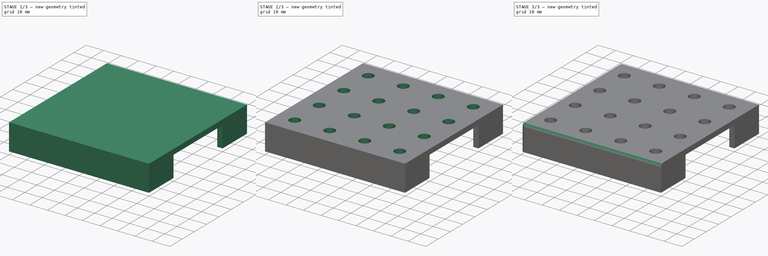
[diagram: build sequence overview — one tinted view per stage of 3, left to right]
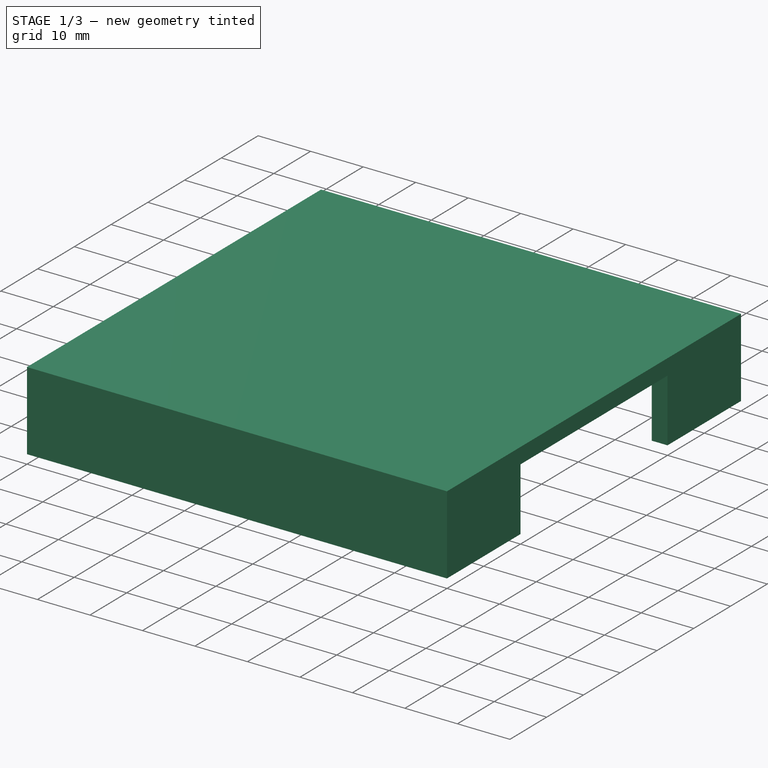
[diagram: stage 1 of 3 — iso view after this stage's code; geometry added in this stage tinted green]
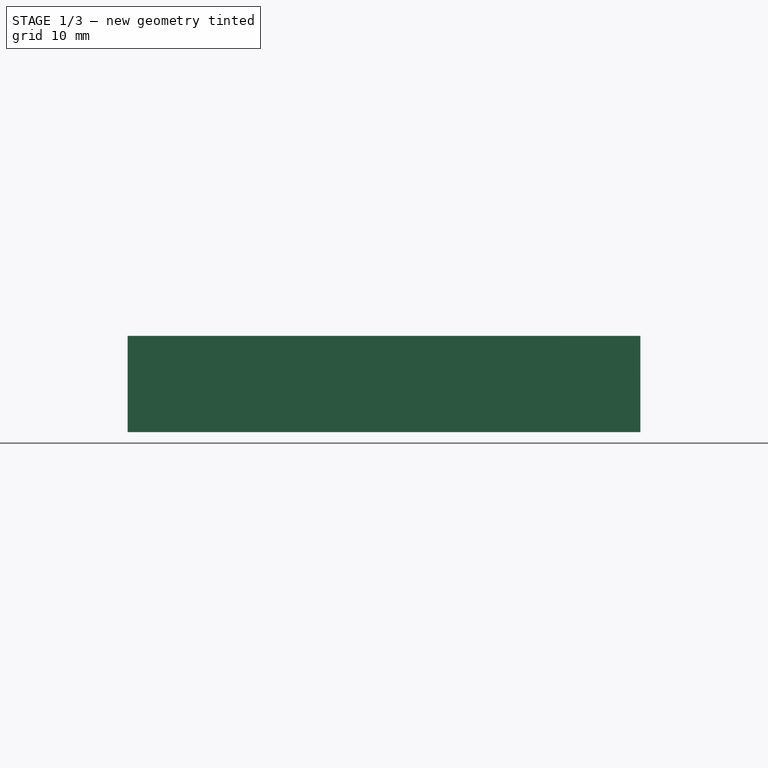
[diagram: stage 1 of 3 — front view after this stage's code; geometry added in this stage tinted green]
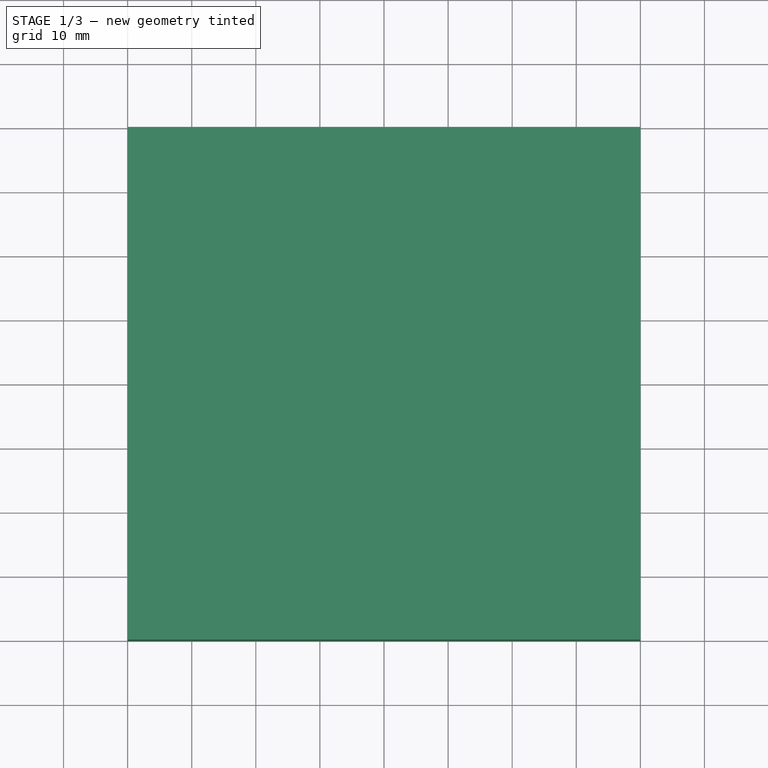
[diagram: stage 1 of 3 — top view after this stage's code; geometry added in this stage tinted green]
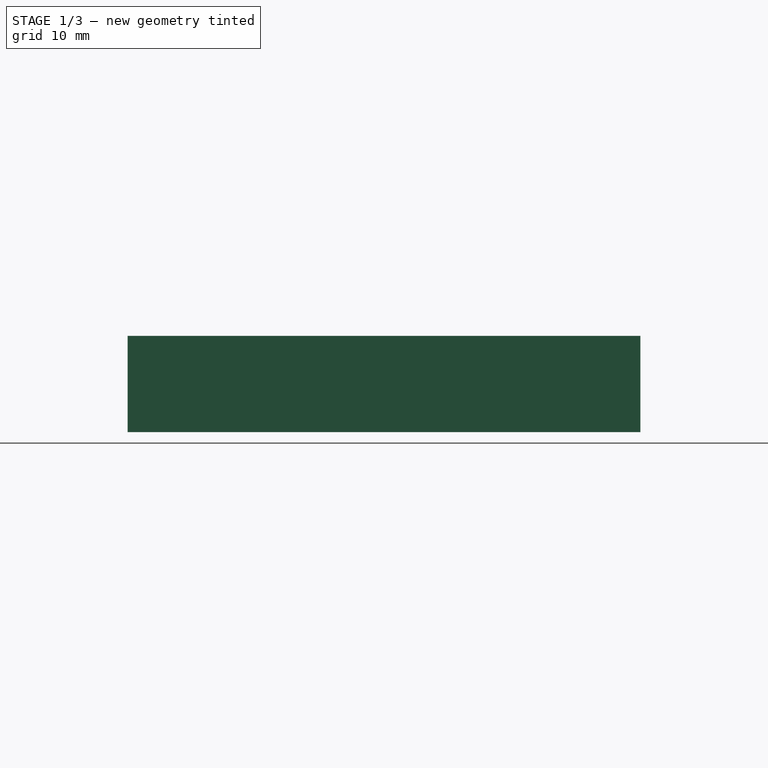
[diagram: stage 1 of 3 — right view after this stage's code; geometry added in this stage tinted green]
FCSTD DOCUMENT  (FreeCAD 0.16R6431 (Git))
Label: Base
License: All rights reserved
LicenseURL: http://en.wikipedia.org/wiki/All_rights_reserved
objects: Sketcher::SketchObject×5, PartDesign::Pocket×3, PartDesign::Pad×2, PartDesign::Fillet×2
note: 17 computed .brp shape members not serialized (recipe doc carries the construction recipe); baked Part::Feature solids carry a one-line shape summary decoded from their .brp

FEATURE [Sketcher::SketchObject] Sketch
  sketch-geometry (4):
    g0: LineSegment StartX=0 StartY=80 StartZ=0 EndX=80 EndY=80 EndZ=0
    g1: LineSegment StartX=80 StartY=80 StartZ=0 EndX=80 EndY=0 EndZ=0
    g2: LineSegment StartX=80 StartY=0 StartZ=0 EndX=0 EndY=0 EndZ=0
    g3: LineSegment StartX=0 StartY=0 StartZ=0 EndX=0 EndY=80 EndZ=0
  constraints (12):
    c: Coincident(g0,g1)
    c: Coincident(g1,g2)
    c: Coincident(g2,g3)
    c: Coincident(g3,g0)
    c: Horizontal(g0)
    c: Horizontal(g2)
    c: Vertical(g1)
    c: Vertical(g3)
    c: PointOnObject(g2,g-1)
    c: PointOnObject(g2,g-2)
    c: DistanceX(g-1,g1) = 80
    c: DistanceY(g-1,g0) = 80
FEATURE [PartDesign::Pad] Pad
  Length = 15
  Length2 = 100
  Sketch = -> Sketch
  Type = 0
FEATURE [Sketcher::SketchObject] Sketch003
  Placement = pos=(0,0,0) rot=(1,0,0;3.14159rad)
  Support = -> Pad [Face5]
  sketch-geometry (12):
    g0: LineSegment StartX=3 StartY=-3 StartZ=0 EndX=77 EndY=-3 EndZ=0
    g1: LineSegment StartX=3 StartY=-77 StartZ=0 EndX=3 EndY=-3 EndZ=0
    g2: LineSegment StartX=77 StartY=-3 StartZ=0 EndX=77 EndY=-20 EndZ=0
    g3: LineSegment StartX=77 StartY=-20 StartZ=0 EndX=80 EndY=-20 EndZ=0
    g4: LineSegment StartX=80 StartY=-20 StartZ=0 EndX=80 EndY=-60 EndZ=0
    g5: LineSegment StartX=80 StartY=-60 StartZ=0 EndX=77 EndY=-60 EndZ=0
    g6: LineSegment StartX=77 StartY=-60 StartZ=0 EndX=77 EndY=-77 EndZ=0
    g7: LineSegment StartX=3 StartY=-77 StartZ=0 EndX=20 EndY=-77 EndZ=0
    g8: LineSegment StartX=20 StartY=-77 StartZ=0 EndX=20 EndY=-80 EndZ=0
    g9: LineSegment StartX=20 StartY=-80 StartZ=0 EndX=60 EndY=-80 EndZ=0
    g10: LineSegment StartX=60 StartY=-80 StartZ=0 EndX=60 EndY=-77 EndZ=0
    g11: LineSegment StartX=60 StartY=-77 StartZ=0 EndX=77 EndY=-77 EndZ=0
  constraints (36):
    c: Coincident(g1,g0)
    c: Horizontal(g0)
    c: Vertical(g1)
    c: Coincident(g0,g2)
    c: Vertical(g2)
    c: Coincident(g2,g3)
    c: Horizontal(g3)
    c: Coincident(g3,g4)
    c: Vertical(g4)
    c: Horizontal(g5)
    c: Coincident(g5,g6)
    c: Vertical(g6)
    c: Coincident(g1,g7)
    c: Coincident(g7,g8)
    c: Vertical(g8)
    c: Coincident(g8,g9)
    c: Horizontal(g9)
    c: Horizontal(g7)
    c: Vertical(g10)
    c: Coincident(g10,g11)
    c: Coincident(g11,g6)
    c: Horizontal(g11)
    c: DistanceX(g-1,g0) = 3
    c: DistanceY(g-1,g0) = -3
    c: DistanceX(g-1,g8) = 20
    c: Coincident(g9,g10)
    c: DistanceY(g-1,g1) = -77
    c: DistanceY(g-1,g8) = -80
    c: DistanceX(g-1,g9) = 60
    c: DistanceX(g-1,g6) = 77
    c: DistanceX(g-1,g5) = 80
    c: Coincident(g4,g5)
    c: DistanceY(g-1,g3) = -20
    c: DistanceY(g-1,g4) = -60
    c: DistanceY(g-1,g6) = -77
    c: DistanceX(g-1,g0) = 77
FEATURE [PartDesign::Pocket] Pocket
  Length = 12
  Sketch = -> Sketch003
  Type = 0
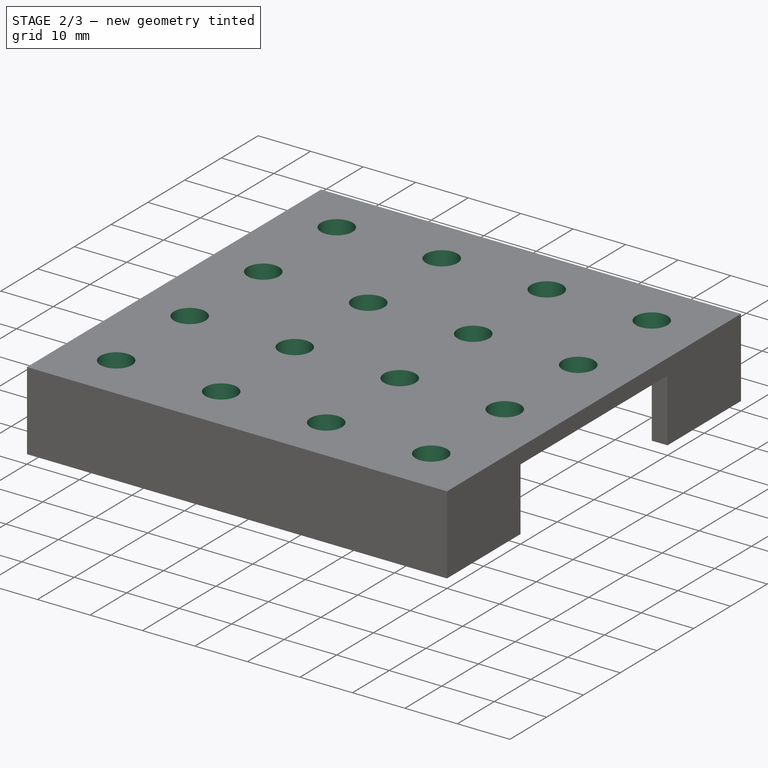
[diagram: stage 2 of 3 — iso view after this stage's code; geometry added in this stage tinted green]
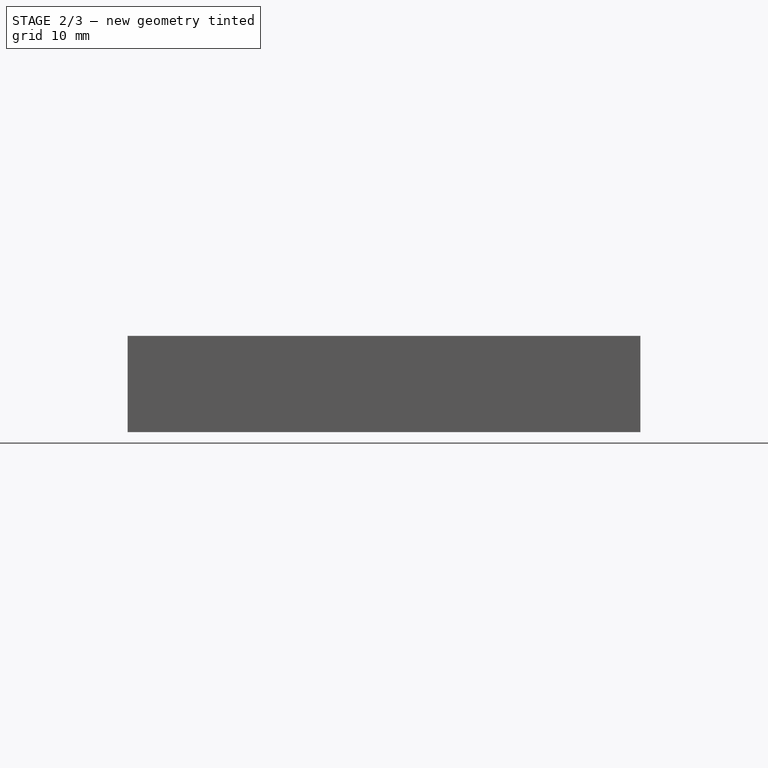
[diagram: stage 2 of 3 — front view after this stage's code; geometry added in this stage tinted green]
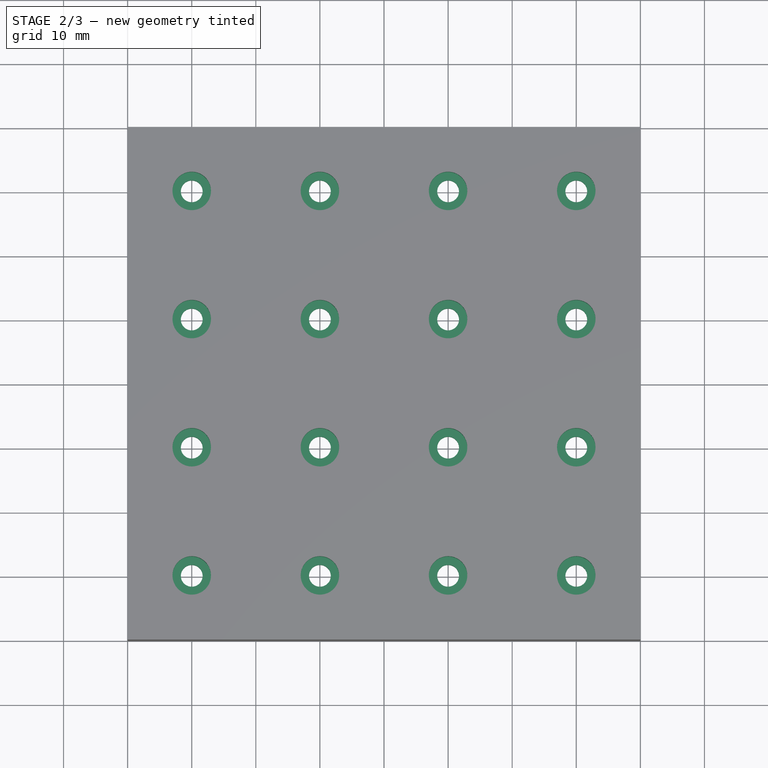
[diagram: stage 2 of 3 — top view after this stage's code; geometry added in this stage tinted green]
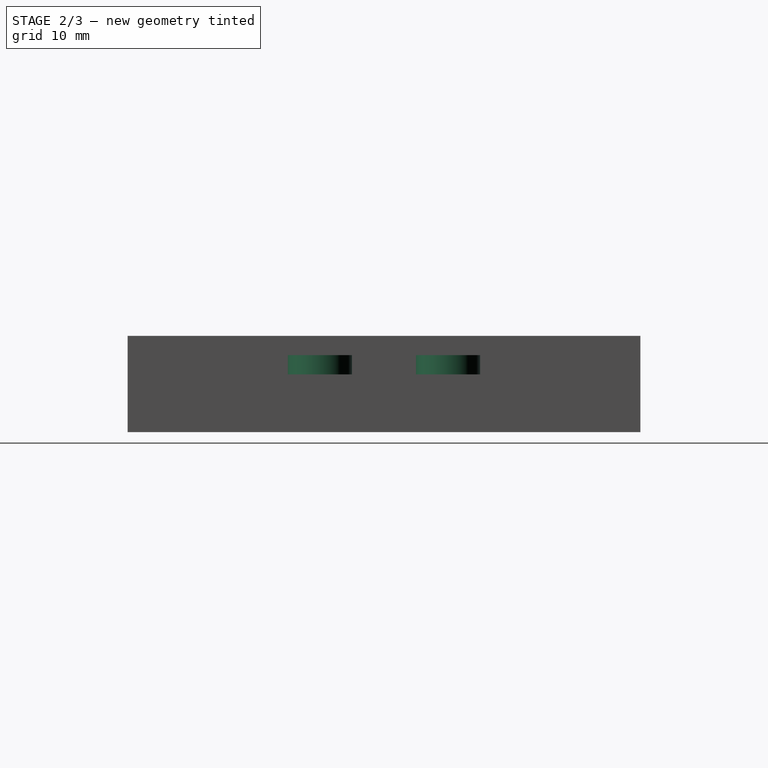
[diagram: stage 2 of 3 — right view after this stage's code; geometry added in this stage tinted green]
FEATURE [Sketcher::SketchObject] Sketch006
  Placement = pos=(0,0,12) rot=(1,0,0;3.14159rad)
  Support = -> Pocket [Face4]
  sketch-geometry (31):
    g0: Circle CenterX=10 CenterY=-10 CenterZ=0 NormalX=0 NormalY=0 NormalZ=1 Radius=5
    g1: Circle CenterX=30 CenterY=-10 CenterZ=0 NormalX=0 NormalY=0 NormalZ=1 Radius=5
    g2: LineSegment [constr] StartX=10 StartY=-10 StartZ=0 EndX=30 EndY=-10 EndZ=0
    g3: Circle CenterX=50 CenterY=-10 CenterZ=0 NormalX=0 NormalY=0 NormalZ=1 Radius=5
    g4: LineSegment [constr] StartX=30 StartY=-10 StartZ=0 EndX=50 EndY=-10 EndZ=0
    g5: Circle CenterX=70 CenterY=-10 CenterZ=0 NormalX=0 NormalY=0 NormalZ=1 Radius=5
    g6: LineSegment [constr] StartX=50 StartY=-10 StartZ=0 EndX=70 EndY=-10 EndZ=0
    g7: Circle CenterX=10 CenterY=-30 CenterZ=0 NormalX=0 NormalY=0 NormalZ=1 Radius=5
    g8: LineSegment [constr] StartX=10 StartY=-10 StartZ=0 EndX=10 EndY=-30 EndZ=0
    g9: Circle CenterX=30 CenterY=-30 CenterZ=0 NormalX=0 NormalY=0 NormalZ=1 Radius=5
    g10: LineSegment [constr] StartX=10 StartY=-30 StartZ=0 EndX=30 EndY=-30 EndZ=0
    g11: Circle CenterX=50 CenterY=-30 CenterZ=0 NormalX=0 NormalY=0 NormalZ=1 Radius=5
    g12: LineSegment [constr] StartX=30 StartY=-30 StartZ=0 EndX=50 EndY=-30 EndZ=0
    g13: Circle CenterX=70 CenterY=-30 CenterZ=0 NormalX=0 NormalY=0 NormalZ=1 Radius=5
    g14: LineSegment [constr] StartX=50 StartY=-30 StartZ=0 EndX=70 EndY=-30 EndZ=0
    g15: Circle CenterX=10 CenterY=-50 CenterZ=0 NormalX=0 NormalY=0 NormalZ=1 Radius=5
    g16: LineSegment [constr] StartX=10 StartY=-30 StartZ=0 EndX=10 EndY=-50 EndZ=0
    g17: Circle CenterX=30 CenterY=-50 CenterZ=0 NormalX=0 NormalY=0 NormalZ=1 Radius=5
    g18: LineSegment [constr] StartX=10 StartY=-50 StartZ=0 EndX=30 EndY=-50 EndZ=0
    g19: Circle CenterX=50 CenterY=-50 CenterZ=0 NormalX=0 NormalY=0 NormalZ=1 Radius=5
    g20: LineSegment [constr] StartX=30 StartY=-50 StartZ=0 EndX=50 EndY=-50 EndZ=0
    g21: Circle CenterX=70 CenterY=-50 CenterZ=0 NormalX=0 NormalY=0 NormalZ=1 Radius=5
    g22: LineSegment [constr] StartX=50 StartY=-50 StartZ=0 EndX=70 EndY=-50 EndZ=0
    g23: Circle CenterX=10 CenterY=-70 CenterZ=0 NormalX=0 NormalY=0 NormalZ=1 Radius=5
    g24: LineSegment [constr] StartX=10 StartY=-50 StartZ=0 EndX=10 EndY=-70 EndZ=0
    g25: Circle CenterX=30 CenterY=-70 CenterZ=0 NormalX=0 NormalY=0 NormalZ=1 Radius=5
    g26: LineSegment [constr] StartX=10 StartY=-70 StartZ=0 EndX=30 EndY=-70 EndZ=0
    g27: Circle CenterX=50 CenterY=-70 CenterZ=0 NormalX=0 NormalY=0 NormalZ=1 Radius=5
    g28: LineSegment [constr] StartX=30 StartY=-70 StartZ=0 EndX=50 EndY=-70 EndZ=0
    g29: Circle CenterX=70 CenterY=-70 CenterZ=0 NormalX=0 NormalY=0 NormalZ=1 Radius=5
    g30: LineSegment [constr] StartX=50 StartY=-70 StartZ=0 EndX=70 EndY=-70 EndZ=0
  constraints (61):
    c: Coincident(g0,g2)
    c: Coincident(g1,g2)
    c: Distance(g2) = 20
    c: Angle(g2) = 0
    c: Coincident(g1,g4)
    c: Coincident(g3,g4)
    c: Equal(g2,g4)
    c: Parallel(g4,g2)
    c: Coincident(g3,g6)
    c: Coincident(g5,g6)
    c: Equal(g2,g6)
    c: Parallel(g6,g2)
    c: Coincident(g0,g8)
    c: Coincident(g7,g8)
    c: Equal(g8,g2)
    c: Perpendicular(g8,g2)
    c: Coincident(g7,g10)
    c: Coincident(g9,g10)
    c: Equal(g2,g10)
    c: Parallel(g10,g2)
    c: Coincident(g9,g12)
    c: Coincident(g11,g12)
    c: Equal(g2,g12)
    c: Parallel(g12,g2)
    c: Coincident(g11,g14)
    c: Coincident(g13,g14)
    c: Equal(g2,g14)
    c: Parallel(g14,g2)
    c: Coincident(g7,g16)
    c: Coincident(g15,g16)
    c: Equal(g8,g16)
    c: Perpendicular(g16,g2)
    c: Coincident(g15,g18)
    c: Coincident(g17,g18)
    c: Equal(g2,g18)
    c: Parallel(g18,g2)
    c: Coincident(g17,g20)
    c: Coincident(g19,g20)
    c: Equal(g2,g20)
    c: Parallel(g20,g2)
    c: Coincident(g19,g22)
    c: Coincident(g21,g22)
    c: Equal(g2,g22)
    c: Parallel(g22,g2)
    c: Coincident(g15,g24)
    c: Coincident(g23,g24)
    c: Equal(g8,g24)
    c: Perpendicular(g24,g2)
    c: Coincident(g23,g26)
    c: Coincident(g25,g26)
    c: Equal(g2,g26)
    c: Parallel(g26,g2)
    c: Coincident(g25,g28)
    c: Coincident(g27,g28)
    c: Equal(g2,g28)
    c: Parallel(g28,g2)
    c: Coincident(g27,g30)
    c: Coincident(g29,g30)
    c: Equal(g2,g30)
    c: Parallel(g30,g2)
    c: DistanceY(g-1,g0) = -10
FEATURE [PartDesign::Pad] Pad001
  Length = 3
  Length2 = 100
  Sketch = -> Sketch006
  Type = 0
FEATURE [Sketcher::SketchObject] Sketch004
  Placement = pos=(0,0,15) rot=(0,0,1;0rad)
  Support = -> Pad001 [Face8]
  sketch-geometry (31):
    g0: Circle CenterX=10 CenterY=10 CenterZ=0 NormalX=0 NormalY=0 NormalZ=1 Radius=1.7
    g1: Circle CenterX=10 CenterY=30 CenterZ=0 NormalX=0 NormalY=0 NormalZ=1 Radius=1.7
    g2: LineSegment [constr] StartX=10 StartY=10 StartZ=0 EndX=10 EndY=30 EndZ=0
    g3: Circle CenterX=10 CenterY=50 CenterZ=0 NormalX=0 NormalY=0 NormalZ=1 Radius=1.7
    g4: LineSegment [constr] StartX=10 StartY=30 StartZ=0 EndX=10 EndY=50 EndZ=0
    g5: Circle CenterX=10 CenterY=70 CenterZ=0 NormalX=0 NormalY=0 NormalZ=1 Radius=1.7
    g6: LineSegment [constr] StartX=10 StartY=50 StartZ=0 EndX=10 EndY=70 EndZ=0
    g7: Circle CenterX=30 CenterY=10 CenterZ=0 NormalX=0 NormalY=0 NormalZ=1 Radius=1.7
    g8: LineSegment [constr] StartX=10 StartY=10 StartZ=0 EndX=30 EndY=10 EndZ=0
    g9: Circle CenterX=30 CenterY=30 CenterZ=0 NormalX=0 NormalY=0 NormalZ=1 Radius=1.7
    g10: LineSegment [constr] StartX=30 StartY=10 StartZ=0 EndX=30 EndY=30 EndZ=0
    g11: Circle CenterX=30 CenterY=50 CenterZ=0 NormalX=0 NormalY=0 NormalZ=1 Radius=1.7
    g12: LineSegment [constr] StartX=30 StartY=30 StartZ=0 EndX=30 EndY=50 EndZ=0
    g13: Circle CenterX=30 CenterY=70 CenterZ=0 NormalX=0 NormalY=0 NormalZ=1 Radius=1.7
    g14: LineSegment [constr] StartX=30 StartY=50 StartZ=0 EndX=30 EndY=70 EndZ=0
    g15: Circle CenterX=50 CenterY=10 CenterZ=0 NormalX=0 NormalY=0 NormalZ=1 Radius=1.7
    g16: LineSegment [constr] StartX=30 StartY=10 StartZ=0 EndX=50 EndY=10 EndZ=0
    g17: Circle CenterX=50 CenterY=30 CenterZ=0 NormalX=0 NormalY=0 NormalZ=1 Radius=1.7
    g18: LineSegment [constr] StartX=50 StartY=10 StartZ=0 EndX=50 EndY=30 EndZ=0
    g19: Circle CenterX=50 CenterY=50 CenterZ=0 NormalX=0 NormalY=0 NormalZ=1 Radius=1.7
    g20: LineSegment [constr] StartX=50 StartY=30 StartZ=0 EndX=50 EndY=50 EndZ=0
    g21: Circle CenterX=50 CenterY=70 CenterZ=0 NormalX=0 NormalY=0 NormalZ=1 Radius=1.7
    g22: LineSegment [constr] StartX=50 StartY=50 StartZ=0 EndX=50 EndY=70 EndZ=0
    g23: Circle CenterX=70 CenterY=10 CenterZ=0 NormalX=0 NormalY=0 NormalZ=1 Radius=1.7
    g24: LineSegment [constr] StartX=50 StartY=10 StartZ=0 EndX=70 EndY=10 EndZ=0
    g25: Circle CenterX=70 CenterY=30 CenterZ=0 NormalX=0 NormalY=0 NormalZ=1 Radius=1.7
    g26: LineSegment [constr] StartX=70 StartY=10 StartZ=0 EndX=70 EndY=30 EndZ=0
    g27: Circle CenterX=70 CenterY=50 CenterZ=0 NormalX=0 NormalY=0 NormalZ=1 Radius=1.7
    g28: LineSegment [constr] StartX=70 StartY=30 StartZ=0 EndX=70 EndY=50 EndZ=0
    g29: Circle CenterX=70 CenterY=70 CenterZ=0 NormalX=0 NormalY=0 NormalZ=1 Radius=1.7
    g30: LineSegment [constr] StartX=70 StartY=50 StartZ=0 EndX=70 EndY=70 EndZ=0
  constraints (78):
    c: Coincident(g0,g2)
    c: Coincident(g1,g2)
    c: Distance(g2) = 20
    c: Angle(g2) = 1.5708
    c: Coincident(g1,g4)
    c: Coincident(g3,g4)
    c: Equal(g2,g4)
    c: Parallel(g4,g2)
    c: Coincident(g3,g6)
    c: Coincident(g5,g6)
    c: Equal(g2,g6)
    c: Parallel(g6,g2)
    c: Coincident(g0,g8)
    c: Coincident(g7,g8)
    c: Equal(g8,g2)
    c: Perpendicular(g8,g2)
    c: Coincident(g7,g10)
    c: Coincident(g9,g10)
    c: Equal(g2,g10)
    c: Parallel(g10,g2)
    c: Coincident(g9,g12)
    c: Coincident(g11,g12)
    c: Equal(g2,g12)
    c: Parallel(g12,g2)
    c: Coincident(g11,g14)
    c: Coincident(g13,g14)
    c: Equal(g2,g14)
    c: Parallel(g14,g2)
    c: Coincident(g7,g16)
    c: Coincident(g15,g16)
    c: Equal(g8,g16)
    c: Perpendicular(g16,g2)
    c: Coincident(g15,g18)
    c: Coincident(g17,g18)
    c: Equal(g2,g18)
    c: Parallel(g18,g2)
    c: Coincident(g17,g20)
    c: Coincident(g19,g20)
    c: Equal(g2,g20)
    c: Parallel(g20,g2)
    c: Coincident(g19,g22)
    c: Coincident(g21,g22)
    c: Equal(g2,g22)
    c: Parallel(g22,g2)
    c: Coincident(g15,g24)
    c: Coincident(g23,g24)
    c: Equal(g8,g24)
    c: Perpendicular(g24,g2)
    c: Coincident(g23,g26)
    c: Coincident(g25,g26)
    c: Equal(g2,g26)
    c: Parallel(g26,g2)
    c: Coincident(g25,g28)
    c: Coincident(g27,g28)
    c: Equal(g2,g28)
    c: Parallel(g28,g2)
    c: Coincident(g27,g30)
    c: Coincident(g29,g30)
    c: Equal(g2,g30)
    c: Parallel(g30,g2)
    c: Equal(g0,g1)
    c: Equal(g1,g3)
    c: Equal(g3,g5)
    c: Equal(g5,g7)
    c: Equal(g7,g9)
    c: Equal(g9,g11)
    c: Equal(g11,g13)
    c: Equal(g13,g15)
    c: Equal(g15,g17)
    c: Equal(g17,g19)
    c: Equal(g19,g21)
    c: Equal(g21,g23)
    c: Equal(g23,g25)
    c: Equal(g25,g27)
    c: Equal(g27,g29)
    c: DistanceY(g-1,g0) = 10
    c: DistanceX(g-1,g0) = 10
    c: Radius(g0) = 1.7
FEATURE [PartDesign::Pocket] Pocket001
  Length = 10
  Sketch = -> Sketch004
  Type = 0
FEATURE [Sketcher::SketchObject] Sketch009
  Placement = pos=(0,0,15) rot=(0,0,1;0rad)
  Support = -> Pocket001 [Face8]
  sketch-geometry (31):
    g0: Circle CenterX=10 CenterY=10 CenterZ=0 NormalX=0 NormalY=0 NormalZ=1 Radius=3
    g1: Circle CenterX=10 CenterY=30 CenterZ=0 NormalX=0 NormalY=0 NormalZ=1 Radius=3
    g2: LineSegment [constr] StartX=10 StartY=10 StartZ=0 EndX=10 EndY=30 EndZ=0
    g3: Circle CenterX=10 CenterY=50 CenterZ=0 NormalX=0 NormalY=0 NormalZ=1 Radius=3
    g4: LineSegment [constr] StartX=10 StartY=30 StartZ=0 EndX=10 EndY=50 EndZ=0
    g5: Circle CenterX=10 CenterY=70 CenterZ=0 NormalX=0 NormalY=0 NormalZ=1 Radius=3
    g6: LineSegment [constr] StartX=10 StartY=50 StartZ=0 EndX=10 EndY=70 EndZ=0
    g7: Circle CenterX=30 CenterY=10 CenterZ=0 NormalX=0 NormalY=0 NormalZ=1 Radius=3
    g8: LineSegment [constr] StartX=10 StartY=10 StartZ=0 EndX=30 EndY=10 EndZ=0
    g9: Circle CenterX=30 CenterY=30 CenterZ=0 NormalX=0 NormalY=0 NormalZ=1 Radius=3
    g10: LineSegment [constr] StartX=30 StartY=10 StartZ=0 EndX=30 EndY=30 EndZ=0
    g11: Circle CenterX=30 CenterY=50 CenterZ=0 NormalX=0 NormalY=0 NormalZ=1 Radius=3
    g12: LineSegment [constr] StartX=30 StartY=30 StartZ=0 EndX=30 EndY=50 EndZ=0
    g13: Circle CenterX=30 CenterY=70 CenterZ=0 NormalX=0 NormalY=0 NormalZ=1 Radius=3
    g14: LineSegment [constr] StartX=30 StartY=50 StartZ=0 EndX=30 EndY=70 EndZ=0
    g15: Circle CenterX=50 CenterY=10 CenterZ=0 NormalX=0 NormalY=0 NormalZ=1 Radius=3
    g16: LineSegment [constr] StartX=30 StartY=10 StartZ=0 EndX=50 EndY=10 EndZ=0
    g17: Circle CenterX=50 CenterY=30 CenterZ=0 NormalX=0 NormalY=0 NormalZ=1 Radius=3
    g18: LineSegment [constr] StartX=50 StartY=10 StartZ=0 EndX=50 EndY=30 EndZ=0
    g19: Circle CenterX=50 CenterY=50 CenterZ=0 NormalX=0 NormalY=0 NormalZ=1 Radius=3
    g20: LineSegment [constr] StartX=50 StartY=30 StartZ=0 EndX=50 EndY=50 EndZ=0
    g21: Circle CenterX=50 CenterY=70 CenterZ=0 NormalX=0 NormalY=0 NormalZ=1 Radius=3
    g22: LineSegment [constr] StartX=50 StartY=50 StartZ=0 EndX=50 EndY=70 EndZ=0
    g23: Circle CenterX=70 CenterY=10 CenterZ=0 NormalX=0 NormalY=0 NormalZ=1 Radius=3
    g24: LineSegment [constr] StartX=50 StartY=10 StartZ=0 EndX=70 EndY=10 EndZ=0
    g25: Circle CenterX=70 CenterY=30 CenterZ=0 NormalX=0 NormalY=0 NormalZ=1 Radius=3
    g26: LineSegment [constr] StartX=70 StartY=10 StartZ=0 EndX=70 EndY=30 EndZ=0
    g27: Circle CenterX=70 CenterY=50 CenterZ=0 NormalX=0 NormalY=0 NormalZ=1 Radius=3
    g28: LineSegment [constr] StartX=70 StartY=30 StartZ=0 EndX=70 EndY=50 EndZ=0
    g29: Circle CenterX=70 CenterY=70 CenterZ=0 NormalX=0 NormalY=0 NormalZ=1 Radius=3
    g30: LineSegment [constr] StartX=70 StartY=50 StartZ=0 EndX=70 EndY=70 EndZ=0
  constraints (78):
    c: Coincident(g0,g2)
    c: Coincident(g1,g2)
    c: Distance(g2) = 20
    c: Angle(g2) = 1.5708
    c: Coincident(g1,g4)
    c: Coincident(g3,g4)
    c: Equal(g2,g4)
    c: Parallel(g4,g2)
    c: Coincident(g3,g6)
    c: Coincident(g5,g6)
    c: Equal(g2,g6)
    c: Parallel(g6,g2)
    c: Coincident(g0,g8)
    c: Coincident(g7,g8)
    c: Equal(g8,g2)
    c: Perpendicular(g8,g2)
    c: Coincident(g7,g10)
    c: Coincident(g9,g10)
    c: Equal(g2,g10)
    c: Parallel(g10,g2)
    c: Coincident(g9,g12)
    c: Coincident(g11,g12)
    c: Equal(g2,g12)
    c: Parallel(g12,g2)
    c: Coincident(g11,g14)
    c: Coincident(g13,g14)
    c: Equal(g2,g14)
    c: Parallel(g14,g2)
    c: Coincident(g7,g16)
    c: Coincident(g15,g16)
    c: Equal(g8,g16)
    c: Perpendicular(g16,g2)
    c: Coincident(g15,g18)
    c: Coincident(g17,g18)
    c: Equal(g2,g18)
    c: Parallel(g18,g2)
    c: Coincident(g17,g20)
    c: Coincident(g19,g20)
    c: Equal(g2,g20)
    c: Parallel(g20,g2)
    c: Coincident(g19,g22)
    c: Coincident(g21,g22)
    c: Equal(g2,g22)
    c: Parallel(g22,g2)
    c: Coincident(g15,g24)
    c: Coincident(g23,g24)
    c: Equal(g8,g24)
    c: Perpendicular(g24,g2)
    c: Coincident(g23,g26)
    c: Coincident(g25,g26)
    c: Equal(g2,g26)
    c: Parallel(g26,g2)
    c: Coincident(g25,g28)
    c: Coincident(g27,g28)
    c: Equal(g2,g28)
    c: Parallel(g28,g2)
    c: Coincident(g27,g30)
    c: Coincident(g29,g30)
    c: Equal(g2,g30)
    c: Parallel(g30,g2)
    c: Equal(g0,g1)
    c: Equal(g1,g3)
    c: Equal(g3,g5)
    c: Equal(g5,g7)
    c: Equal(g7,g9)
    c: Equal(g9,g11)
    c: Equal(g11,g13)
    c: Equal(g13,g15)
    c: Equal(g15,g17)
    c: Equal(g17,g19)
    c: Equal(g19,g21)
    c: Equal(g21,g23)
    c: Equal(g23,g25)
    c: Equal(g25,g27)
    c: Equal(g27,g29)
    c: DistanceY(g-1,g0) = 10
    c: DistanceX(g-1,g0) = 10
    c: Radius(g0) = 3
FEATURE [PartDesign::Pocket] Pocket002
  Length = 3.5
  Sketch = -> Sketch009
  Type = 0
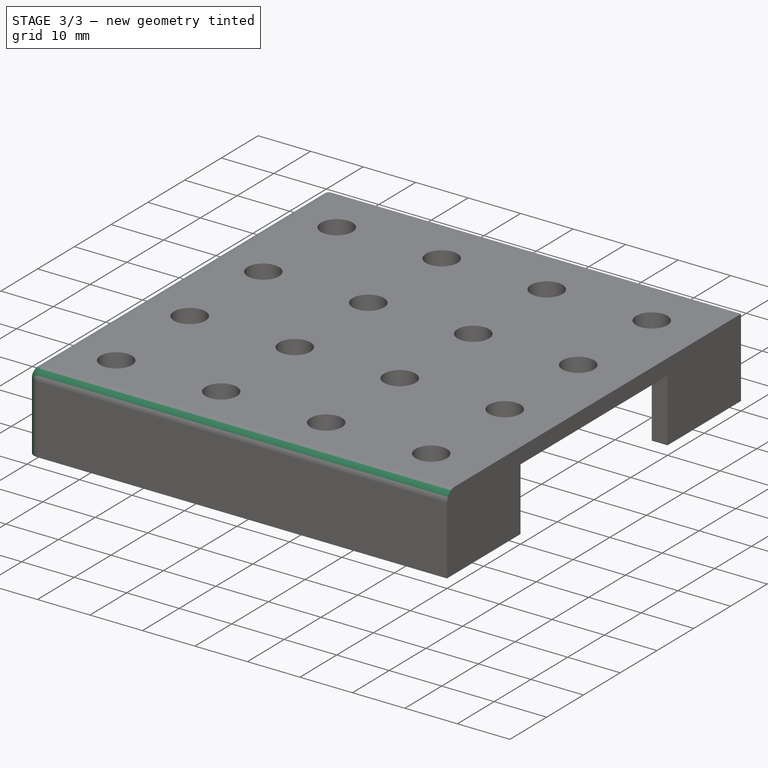
[diagram: stage 3 of 3 — iso view after this stage's code; geometry added in this stage tinted green]
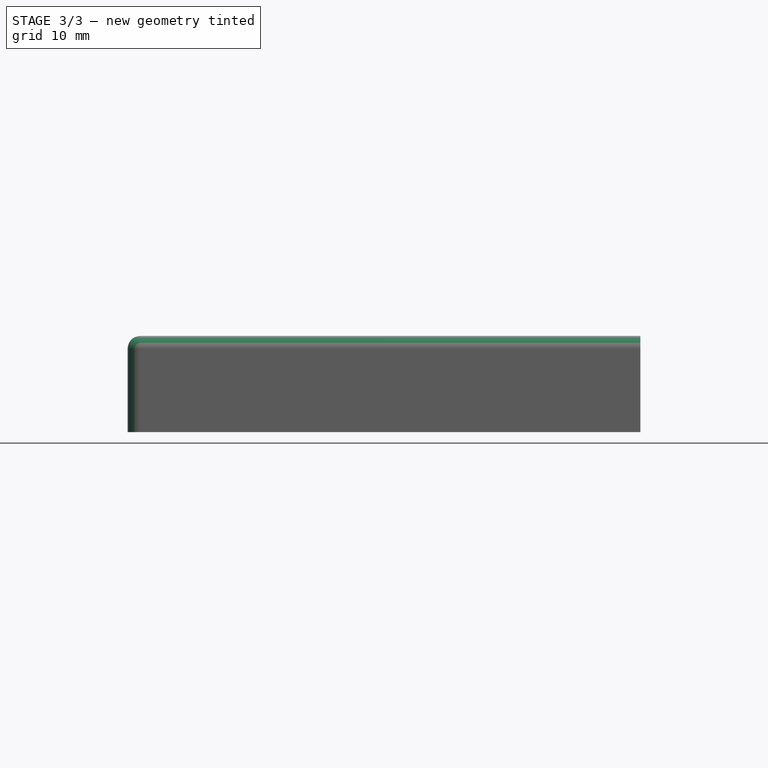
[diagram: stage 3 of 3 — front view after this stage's code; geometry added in this stage tinted green]
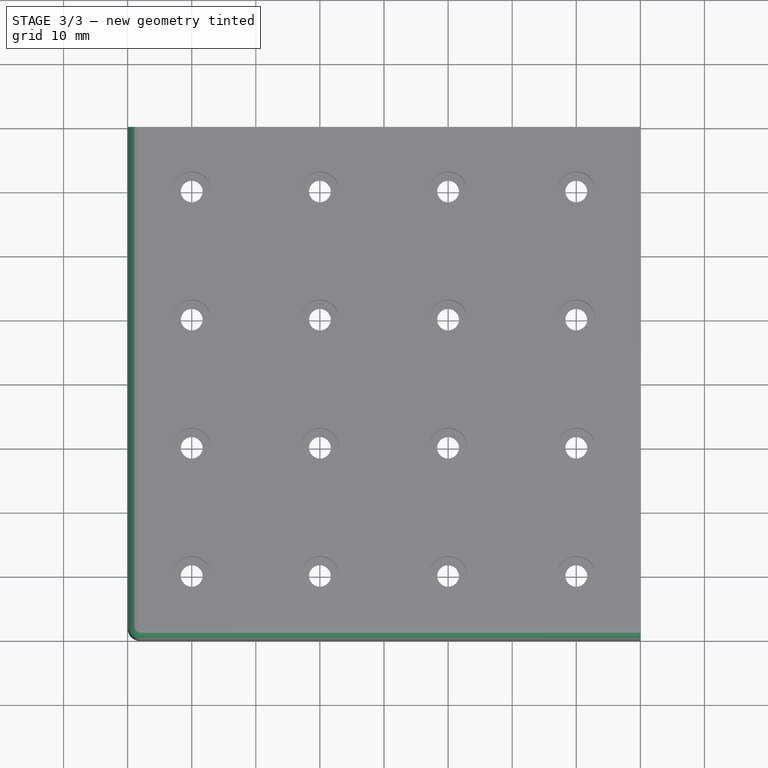
[diagram: stage 3 of 3 — top view after this stage's code; geometry added in this stage tinted green]
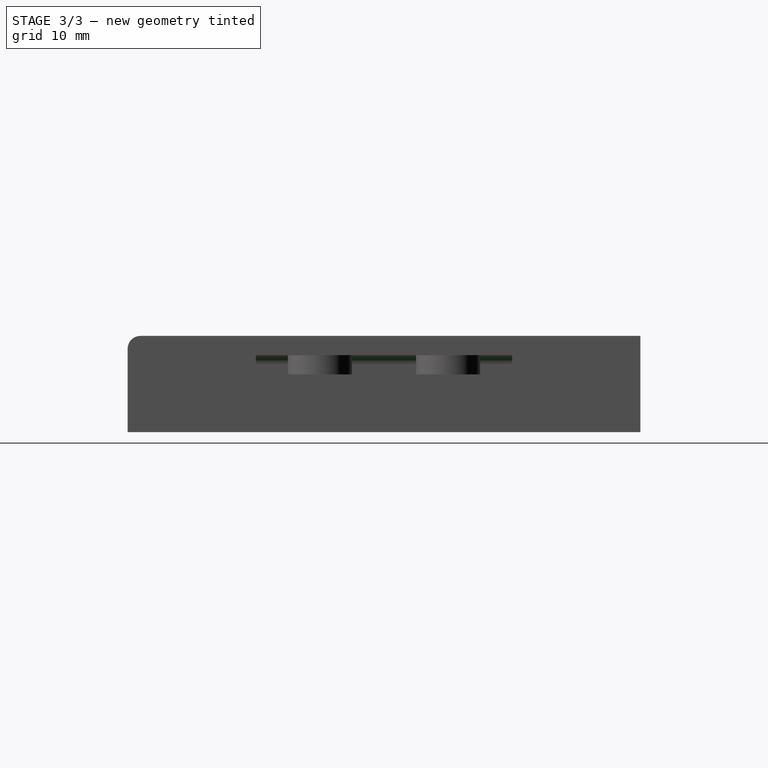
[diagram: stage 3 of 3 — right view after this stage's code; geometry added in this stage tinted green]
FEATURE [PartDesign::Fillet] Fillet
  Base = -> Pocket002 [Edge57,Edge74,Edge56]
  Radius = 2
FEATURE [PartDesign::Fillet] Fillet001
  Base = -> Fillet [Edge63,Edge62,Edge58,Edge56,Edge57,Edge59]
  Radius = 1.5
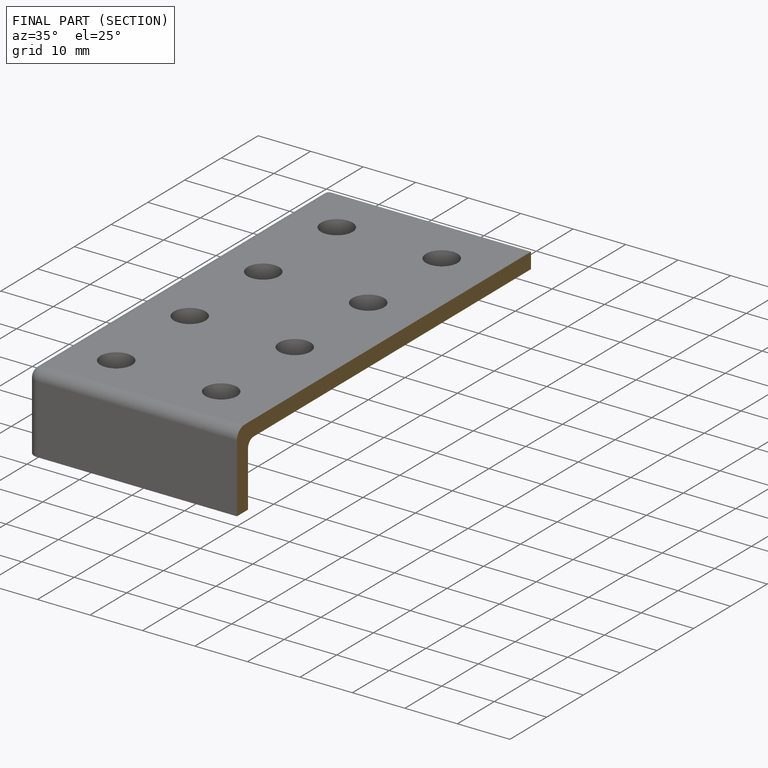
[diagram: finished part — half-section view (interior)]
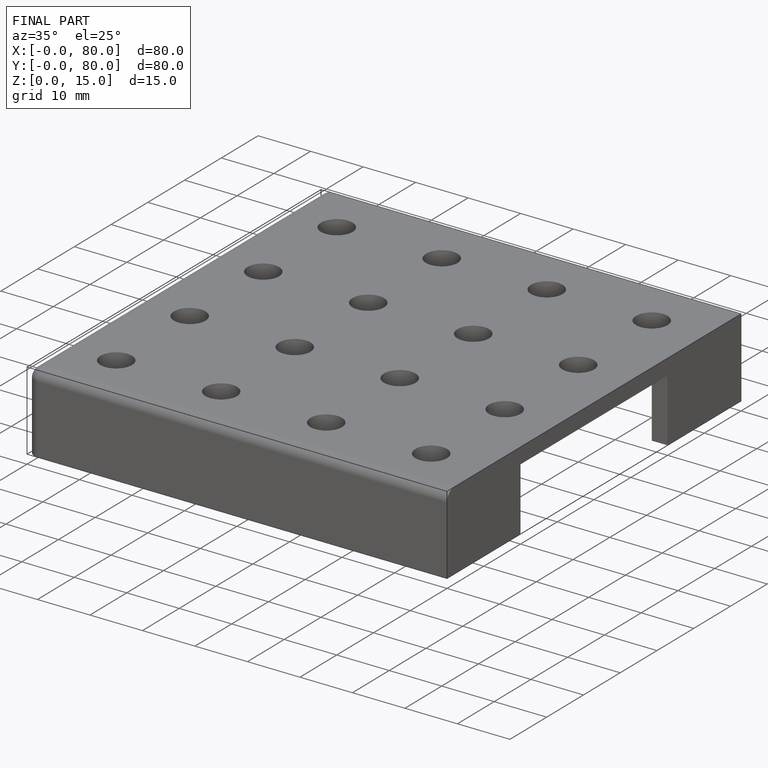
[diagram: finished part — iso view with bounding-box wireframe]
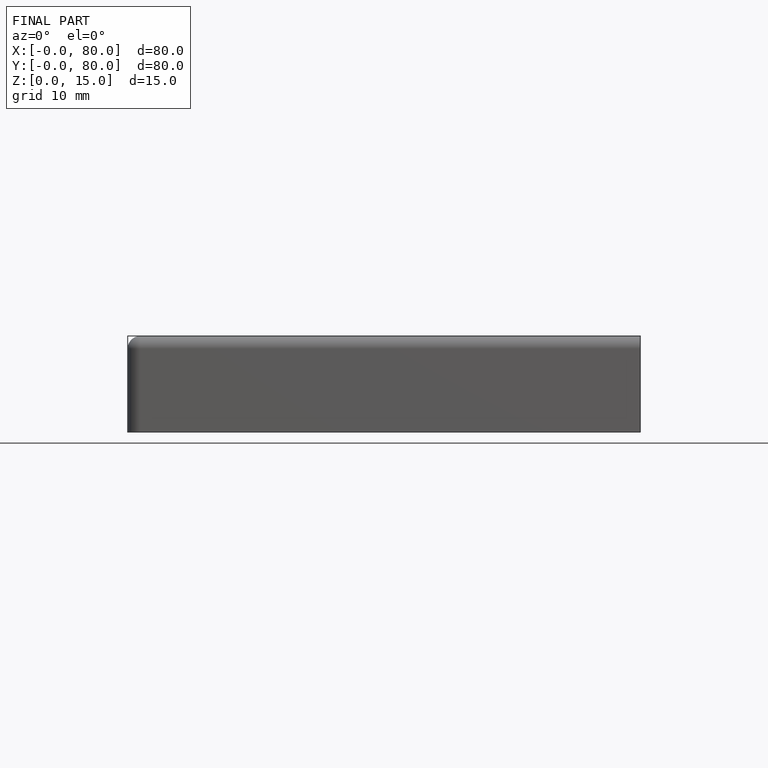
[diagram: finished part — front view with bounding-box wireframe]
